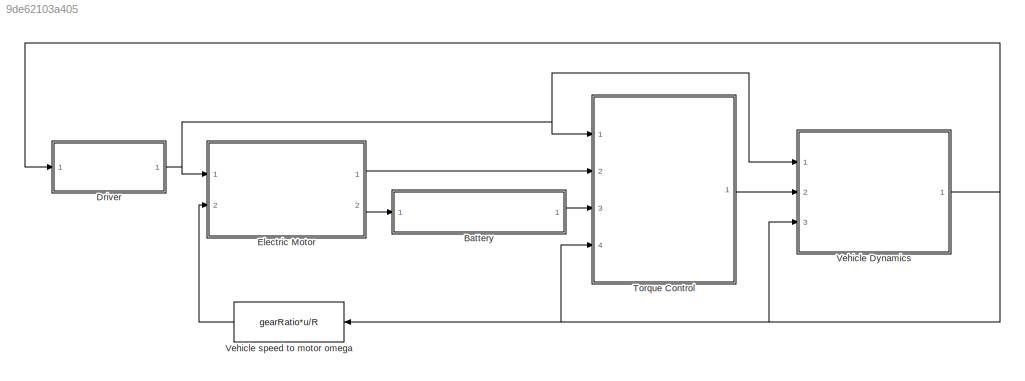
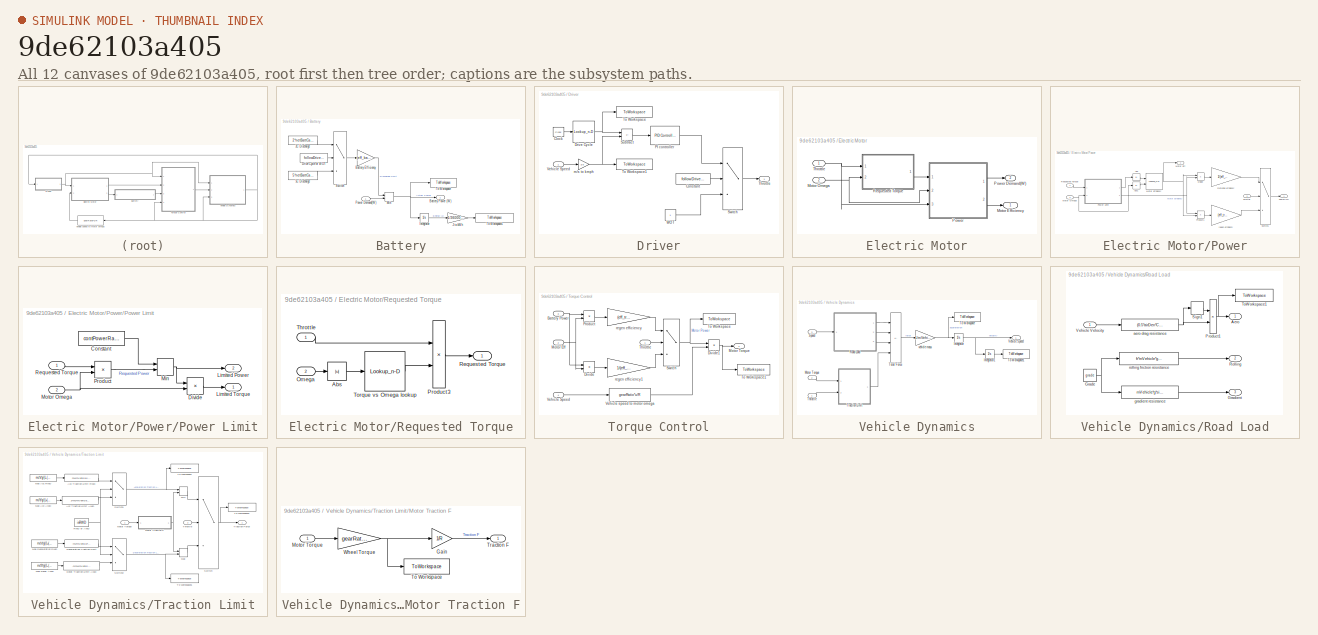
[diagram: thumbnail index - all 12 canvases of the model, root first then tree order]
MODEL slx_9de62103a405
KIND model
CONFIG AbsTol = auto
CONFIG EnableMultiTasking = off
CONFIG FixedStep = 1
CONFIG MaxStep = auto
CONFIG MinStep = auto
CONFIG RelTol = 1e-3
CONFIG SampleTimeConstraint = Unconstrained
CONFIG SolverName = VariableStepAuto
CONFIG StartTime = 1
CONFIG StopTime = sim_time
BLOCK [SubSystem] Battery
  Ports = [1, 1]
  RequestExecContextInheritance = off
BLOCK [Constant] Battery/2C Discharge
  Value = 2*netBattCap*1000
BLOCK [Constant] Battery/5C Discharge
  Value = 5*netBattCap*1000
BLOCK [Gain] Battery/Battery Efficiency
  Gain = (eff_batt)
BLOCK [Outport] Battery/Battery Power (W)
BLOCK [Constant] Battery/Drive Cycle or WOT
  Value = followDriveCycle
BLOCK [Integrator] Battery/Integrator
  Ports = [1, 1]
BLOCK [Gain] Battery/J to kWh
  Gain = 1/3600000
BLOCK [MinMax] Battery/Min
  Inputs = 2
  Ports = [2, 1]
BLOCK [Inport] Battery/Power Demand(W)
BLOCK [Switch] Battery/Switch
  Criteria = u2 > Threshold
  InputSameDT = off
  SaturateOnIntegerOverflow = off
BLOCK [ToWorkspace] Battery/To Workspace
  FixptAsFi = on
  MaxDataPoints = inf
  Ports = [1]
  SampleTime = -1
  SaveFormat = Timeseries
  VariableName = power
BLOCK [ToWorkspace] Battery/To Workspace1
  FixptAsFi = on
  MaxDataPoints = inf
  Ports = [1]
  SampleTime = -1
  SaveFormat = Timeseries
  VariableName = energyConsumed
BLOCK [SubSystem] Driver
  Ports = [1, 1]
  RequestExecContextInheritance = off
BLOCK [Clock] Driver/Clock
BLOCK [Constant] Driver/Constant
  Value = followDriveCycle
BLOCK [Lookup_n-D] Driver/Drive Cycle
  BreakpointsForDimension1 = t_cyc
  InputPortMap = u0
  InternalRulePriority = Speed
  NumberOfTableDimensions = 1
  Ports = [1, 1]
  RndMeth = Simplest
  Table = v_cyc
BLOCK [Reference] Driver/PI controller   REF=slpidlib/PID Controller
  Ports = [1, 1]
  SourceBlock = slpidlib/PID Controller
  SourceProductBaseCode = SL
  SourceType = PID 1dof
BLOCK [Sum] Driver/Subtract
  IconShape = rectangular
  Inputs = +-
  Ports = [2, 1]
BLOCK [Switch] Driver/Switch
  Criteria = u2 > Threshold
  InputSameDT = off
  SaturateOnIntegerOverflow = off
BLOCK [Outport] Driver/Throttle
BLOCK [ToWorkspace] Driver/To Workspace
  FixptAsFi = on
  MaxDataPoints = inf
  Ports = [1]
  SampleTime = -1
  Save2DSignal = 2-D array (concatenate along first dimension)
  SaveFormat = Timeseries
  VariableName = desiredSpeed
BLOCK [ToWorkspace] Driver/To Workspace1
  FixptAsFi = on
  MaxDataPoints = inf
  Ports = [1]
  SampleTime = -1
  SaveFormat = Timeseries
  VariableName = vehicleSpeed
BLOCK [Inport] Driver/Vehicle Speed
BLOCK [Constant] Driver/WOT
BLOCK [Gain] Driver/m//s to kmph
  Gain = 3.6
BLOCK [SubSystem] Electric Motor
  Ports = [2, 2]
  RequestExecContextInheritance = off
BLOCK [Outport] Electric Motor/Motor Efficiency 
BLOCK [Inport] Electric Motor/Motor Omega
  Port = 2
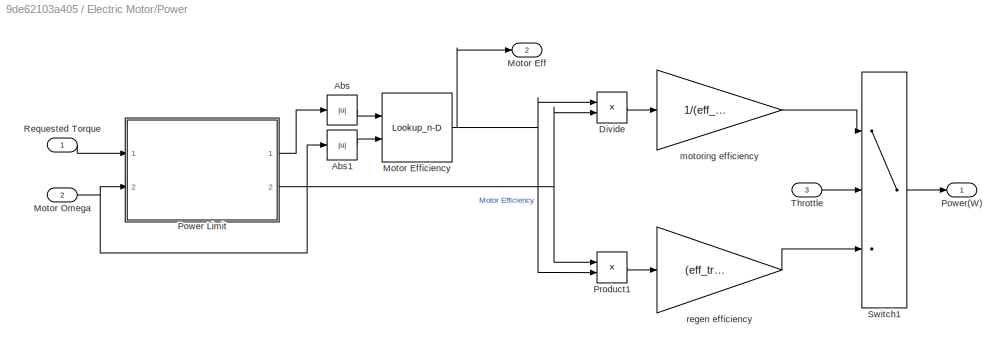
BLOCK [SubSystem] Electric Motor/Power
  Ports = [3, 2]
  RequestExecContextInheritance = off
BLOCK [Outport] Electric Motor/Power Demand(W)
  Port = 2
BLOCK [Abs] Electric Motor/Power/Abs
  SaturateOnIntegerOverflow = off
BLOCK [Abs] Electric Motor/Power/Abs1
  SaturateOnIntegerOverflow = off
BLOCK [Product] Electric Motor/Power/Divide
  Inputs = /*
  Ports = [2, 1]
BLOCK [Outport] Electric Motor/Power/Motor Eff
  Port = 2
BLOCK [Lookup_n-D] Electric Motor/Power/Motor Efficiency
  BreakpointsForDimension1 = EM_Torque_Map
  BreakpointsForDimension2 = EM_Omega_Map
  InputPortMap = u0,u1
  InternalRulePriority = Speed
  Ports = [2, 1]
  RndMeth = Simplest
  Table = EM_Efficiency
BLOCK [Inport] Electric Motor/Power/Motor Omega
  Port = 2
BLOCK [SubSystem] Electric Motor/Power/Power Limit
  Ports = [2, 2]
  RequestExecContextInheritance = off
BLOCK [Constant] Electric Motor/Power/Power Limit/Constant
  Value = contPowerRating
BLOCK [Product] Electric Motor/Power/Power Limit/Divide
  Inputs = */
  Ports = [2, 1]
BLOCK [Outport] Electric Motor/Power/Power Limit/Limited Power
  Port = 2
BLOCK [Outport] Electric Motor/Power/Power Limit/Limited Torque
BLOCK [MinMax] Electric Motor/Power/Power Limit/Min
  Inputs = 2
  Ports = [2, 1]
BLOCK [Inport] Electric Motor/Power/Power Limit/Motor Omega
  Port = 2
BLOCK [Product] Electric Motor/Power/Power Limit/Product
  Ports = [2, 1]
BLOCK [Inport] Electric Motor/Power/Power Limit/Requested Torque
BLOCK [Outport] Electric Motor/Power/Power(W) 
BLOCK [Product] Electric Motor/Power/Product1
  Ports = [2, 1]
BLOCK [Inport] Electric Motor/Power/Requested Torque
BLOCK [Switch] Electric Motor/Power/Switch1
  Criteria = u2 > Threshold
  InputSameDT = off
  SaturateOnIntegerOverflow = off
BLOCK [Inport] Electric Motor/Power/Throttle 
  Port = 3
BLOCK [Gain] Electric Motor/Power/motoring efficiency
  Gain = 1/(eff_trans*eff_batt)
BLOCK [Gain] Electric Motor/Power/regen efficiency
  Gain = (eff_trans*eff_batt)
BLOCK [SubSystem] Electric Motor/Requested Torque
  Ports = [2, 1]
  RequestExecContextInheritance = off
BLOCK [Abs] Electric Motor/Requested Torque/Abs
  SaturateOnIntegerOverflow = off
BLOCK [Inport] Electric Motor/Requested Torque/Omega
  Port = 2
BLOCK [Product] Electric Motor/Requested Torque/Product3
  Ports = [2, 1]
  RndMeth = Zero
BLOCK [Outport] Electric Motor/Requested Torque/Requested Torque
BLOCK [Inport] Electric Motor/Requested Torque/Throttle
BLOCK [Lookup_n-D] Electric Motor/Requested Torque/Torque vs Omega lookup
  BreakpointsForDimension1 = EM_Omega_Max
  BreakpointsForDimension2 = alpha
  InputPortMap = u0
  InternalRulePriority = Speed
  NumberOfTableDimensions = 1
  Ports = [1, 1]
  RndMeth = Simplest
  Table = EM_Torque_Max
BLOCK [Inport] Electric Motor/Throttle 
BLOCK [SubSystem] Torque Control
  Ports = [4, 1]
  RequestExecContextInheritance = off
BLOCK [Inport] Torque Control/Battery Power
  Port = 3
BLOCK [Product] Torque Control/Divide
  Inputs = */
  Ports = [2, 1]
BLOCK [Product] Torque Control/Divide1
  Inputs = */
  Ports = [2, 1]
BLOCK [Inport] Torque Control/Motor Eff
  Port = 2
BLOCK [Outport] Torque Control/Motor Torque
BLOCK [Product] Torque Control/Product
  Ports = [2, 1]
BLOCK [Switch] Torque Control/Switch
  Criteria = u2 > Threshold
  InputSameDT = off
  SaturateOnIntegerOverflow = off
BLOCK [Inport] Torque Control/Throttle
BLOCK [ToWorkspace] Torque Control/To Workspace
  FixptAsFi = on
  MaxDataPoints = inf
  Ports = [1]
  SampleTime = -1
  SaveFormat = Timeseries
  VariableName = motPower
BLOCK [ToWorkspace] Torque Control/To Workspace1
  FixptAsFi = on
  MaxDataPoints = inf
  Ports = [1]
  SampleTime = -1
  SaveFormat = Timeseries
  VariableName = motTorque
BLOCK [Inport] Torque Control/Vehicle Speed
  Port = 4
BLOCK [Fcn] Torque Control/Vehicle speed to motor omega
  Expr = gearRatio*u/R
BLOCK [Gain] Torque Control/regen efficiency
  Gain = (eff_trans*eff_batt)
BLOCK [Gain] Torque Control/regen efficiency1
  Gain = 1/(eff_trans*eff_batt)
BLOCK [SubSystem] Vehicle Dynamics
  Ports = [3, 1]
  RequestExecContextInheritance = off
BLOCK [Integrator] Vehicle Dynamics/Integrator
  Ports = [1, 1]
BLOCK [Integrator] Vehicle Dynamics/Integrator1
  Ports = [1, 1]
BLOCK [Inport] Vehicle Dynamics/Motor Torque
  Port = 2
BLOCK [SubSystem] Vehicle Dynamics/Road Load
  Ports = [1, 3]
  RequestExecContextInheritance = off
BLOCK [Outport] Vehicle Dynamics/Road Load/Aero 
BLOCK [Constant] Vehicle Dynamics/Road Load/Grade
  Value = grade
BLOCK [Outport] Vehicle Dynamics/Road Load/Gradient
  Port = 3
BLOCK [Product] Vehicle Dynamics/Road Load/Product1
  Ports = [2, 1]
BLOCK [Outport] Vehicle Dynamics/Road Load/Rolling
  Port = 2
BLOCK [Signum] Vehicle Dynamics/Road Load/Sign1
  NameLocation = top
BLOCK [ToWorkspace] Vehicle Dynamics/Road Load/ToWorkspace1
  FixptAsFi = on
  MaxDataPoints = inf
  Ports = [1]
  SampleTime = -1
  Save2DSignal = 2-D array (concatenate along first dimension)
  SaveFormat = Timeseries
  VariableName = airDrag
BLOCK [Inport] Vehicle Dynamics/Road Load/Vehicle Velocity
BLOCK [Fcn] Vehicle Dynamics/Road Load/aero drag resistance
  Expr = (0.5*airDen*Cd*fArea)*(u^2)
BLOCK [Fcn] Vehicle Dynamics/Road Load/gradient resistance
  Expr = mVehicle*g*sin(atan(u))
BLOCK [Fcn] Vehicle Dynamics/Road Load/rolling friction resistance
  Expr = fr*mVehicle*g*cos(atan(u))
BLOCK [Inport] Vehicle Dynamics/Speed
  Port = 3
BLOCK [Inport] Vehicle Dynamics/Throttle
BLOCK [ToWorkspace] Vehicle Dynamics/To Workspace
  FixptAsFi = on
  MaxDataPoints = inf
  Ports = [1]
  SampleTime = -1
  SaveFormat = Timeseries
  VariableName = acceleration
BLOCK [ToWorkspace] Vehicle Dynamics/To Workspace1
  FixptAsFi = on
  MaxDataPoints = inf
  Ports = [1]
  SampleTime = -1
  SaveFormat = Timeseries
  VariableName = distance
BLOCK [Sum] Vehicle Dynamics/Total Force
  IconShape = rectangular
  Inputs = ---+
  Ports = [4, 1]
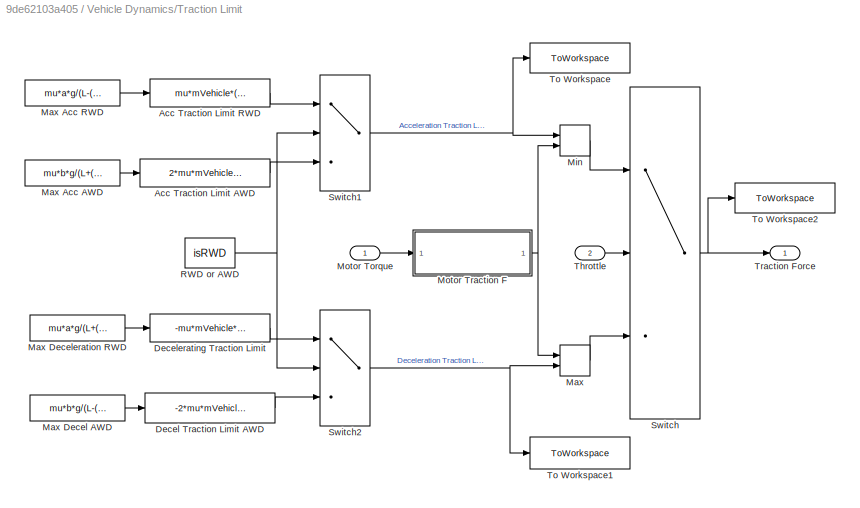
BLOCK [SubSystem] Vehicle Dynamics/Traction Limit
  Ports = [2, 1]
  RequestExecContextInheritance = off
BLOCK [Fcn] Vehicle Dynamics/Traction Limit/Acc Traction Limit AWD
  Expr = 2*mu*mVehicle*(b*g-h*u)/L
BLOCK [Fcn] Vehicle Dynamics/Traction Limit/Acc Traction Limit RWD
  Expr = mu*mVehicle*(a*g+h*u)/L
BLOCK [Fcn] Vehicle Dynamics/Traction Limit/Decel Traction Limit AWD
  Expr = -2*mu*mVehicle*(b*g+h*u)/L
BLOCK [Fcn] Vehicle Dynamics/Traction Limit/Decelerating Traction Limit
  Expr = -mu*mVehicle*(a*g-h*u)/L
BLOCK [MinMax] Vehicle Dynamics/Traction Limit/Max
  Function = max
  Inputs = 2
  Ports = [2, 1]
BLOCK [Constant] Vehicle Dynamics/Traction Limit/Max Acc AWD
  Value = mu*b*g/(L+(h*mu))
BLOCK [Constant] Vehicle Dynamics/Traction Limit/Max Acc RWD
  Value = mu*a*g/(L-(h*mu))
BLOCK [Constant] Vehicle Dynamics/Traction Limit/Max Decel AWD
  Value = mu*b*g/(L-(h*mu))
BLOCK [Constant] Vehicle Dynamics/Traction Limit/Max Deceleration RWD
  Value = mu*a*g/(L+(h*mu))
BLOCK [MinMax] Vehicle Dynamics/Traction Limit/Min
  Inputs = 2
  Ports = [2, 1]
BLOCK [Inport] Vehicle Dynamics/Traction Limit/Motor Torque
BLOCK [SubSystem] Vehicle Dynamics/Traction Limit/Motor Traction F
  Ports = [1, 1]
  RequestExecContextInheritance = off
BLOCK [Gain] Vehicle Dynamics/Traction Limit/Motor Traction F/Gain
  Gain = 1/R
BLOCK [Inport] Vehicle Dynamics/Traction Limit/Motor Traction F/Motor Torque
BLOCK [ToWorkspace] Vehicle Dynamics/Traction Limit/Motor Traction F/To Workspace
  FixptAsFi = on
  MaxDataPoints = inf
  Ports = [1]
  SampleTime = -1
  SaveFormat = Timeseries
  VariableName = wheelTorque
BLOCK [Outport] Vehicle Dynamics/Traction Limit/Motor Traction F/Traction F
BLOCK [Gain] Vehicle Dynamics/Traction Limit/Motor Traction F/Wheel Torque
  Gain = gearRatio
BLOCK [Constant] Vehicle Dynamics/Traction Limit/RWD or AWD
  Value = isRWD
BLOCK [Switch] Vehicle Dynamics/Traction Limit/Switch
  InputSameDT = off
  SaturateOnIntegerOverflow = off
BLOCK [Switch] Vehicle Dynamics/Traction Limit/Switch1
  Criteria = u2 > Threshold
  InputSameDT = off
  SaturateOnIntegerOverflow = off
BLOCK [Switch] Vehicle Dynamics/Traction Limit/Switch2
  Criteria = u2 > Threshold
  InputSameDT = off
  SaturateOnIntegerOverflow = off
BLOCK [Inport] Vehicle Dynamics/Traction Limit/Throttle
  Port = 2
BLOCK [ToWorkspace] Vehicle Dynamics/Traction Limit/To Workspace
  FixptAsFi = on
  MaxDataPoints = inf
  Ports = [1]
  SampleTime = -1
  SaveFormat = Timeseries
  VariableName = accTracLimit
BLOCK [ToWorkspace] Vehicle Dynamics/Traction Limit/To Workspace1
  FixptAsFi = on
  MaxDataPoints = inf
  Ports = [1]
  SampleTime = -1
  SaveFormat = Timeseries
  VariableName = decTracLimit
BLOCK [ToWorkspace] Vehicle Dynamics/Traction Limit/To Workspace2
  FixptAsFi = on
  MaxDataPoints = inf
  Ports = [1]
  SampleTime = -1
  SaveFormat = Timeseries
  VariableName = tractionForce
BLOCK [Outport] Vehicle Dynamics/Traction Limit/Traction Force
BLOCK [Outport] Vehicle Dynamics/Vehicle Speed
BLOCK [Gain] Vehicle Dynamics/vehicle mass
  Gain = 1/mVehicle
BLOCK [Fcn] Vehicle speed to motor omega
  Expr = gearRatio*u/R
LINE Battery/2C Discharge:1 -> Battery/Switch:1
LINE Battery/5C Discharge:1 -> Battery/Switch:3
LINE Battery/Battery Efficiency:1 -> Battery/Min:1
LINE Battery/Drive Cycle or WOT:1 -> Battery/Switch:2
LINE Battery/Integrator:1 -> Battery/J to kWh:1
LINE Battery/J to kWh:1 -> Battery/To Workspace1:1
NET Battery/Min:1 -> Battery/Battery Power (W):1, Battery/Integrator:1, Battery/To Workspace:1
LINE Battery/Power Demand(W):1 -> Battery/Min:2
LINE Battery/Switch:1 -> Battery/Battery Efficiency:1
LINE Battery:1 -> Torque Control:3
LINE Driver/Clock:1 -> Driver/Drive Cycle:1
LINE Driver/Constant:1 -> Driver/Switch:2
NET Driver/Drive Cycle:1 -> Driver/Subtract:1, Driver/To Workspace:1
LINE Driver/PI controller :1 -> Driver/Switch:1
LINE Driver/Subtract:1 -> Driver/PI controller :1
LINE Driver/Switch:1 -> Driver/Throttle:1
LINE Driver/Vehicle Speed:1 -> Driver/m//s to kmph:1
LINE Driver/WOT:1 -> Driver/Switch:3
NET Driver/m//s to kmph:1 -> Driver/Subtract:2, Driver/To Workspace1:1
NET Driver:1 -> Electric Motor:1, Torque Control:1, Vehicle Dynamics:1
NET Electric Motor/Motor Omega:1 -> Electric Motor/Power:2, Electric Motor/Requested Torque:2
LINE Electric Motor/Power/Abs1:1 -> Electric Motor/Power/Motor Efficiency:2
LINE Electric Motor/Power/Abs:1 -> Electric Motor/Power/Motor Efficiency:1
LINE Electric Motor/Power/Divide:1 -> Electric Motor/Power/motoring efficiency:1
NET Electric Motor/Power/Motor Efficiency:1 -> Electric Motor/Power/Divide:1, Electric Motor/Power/Motor Eff:1, Electric Motor/Power/Product1:2
NET Electric Motor/Power/Motor Omega:1 -> Electric Motor/Power/Abs1:1, Electric Motor/Power/Power Limit:2
LINE Electric Motor/Power/Power Limit/Constant:1 -> Electric Motor/Power/Power Limit/Min:1
LINE Electric Motor/Power/Power Limit/Divide:1 -> Electric Motor/Power/Power Limit/Limited Torque:1
NET Electric Motor/Power/Power Limit/Min:1 -> Electric Motor/Power/Power Limit/Divide:1, Electric Motor/Power/Power Limit/Limited Power:1
NET Electric Motor/Power/Power Limit/Motor Omega:1 -> Electric Motor/Power/Power Limit/Divide:2, Electric Motor/Power/Power Limit/Product:2
LINE Electric Motor/Power/Power Limit/Product:1 -> Electric Motor/Power/Power Limit/Min:2
LINE Electric Motor/Power/Power Limit/Requested Torque:1 -> Electric Motor/Power/Power Limit/Product:1
LINE Electric Motor/Power/Power Limit:1 -> Electric Motor/Power/Abs:1
NET Electric Motor/Power/Power Limit:2 -> Electric Motor/Power/Divide:2, Electric Motor/Power/Product1:1
LINE Electric Motor/Power/Product1:1 -> Electric Motor/Power/regen efficiency:1
LINE Electric Motor/Power/Requested Torque:1 -> Electric Motor/Power/Power Limit:1
LINE Electric Motor/Power/Switch1:1 -> Electric Motor/Power/Power(W) :1
LINE Electric Motor/Power/Throttle :1 -> Electric Motor/Power/Switch1:2
LINE Electric Motor/Power/motoring efficiency:1 -> Electric Motor/Power/Switch1:1
LINE Electric Motor/Power/regen efficiency:1 -> Electric Motor/Power/Switch1:3
LINE Electric Motor/Power:1 -> Electric Motor/Power Demand(W):1
LINE Electric Motor/Power:2 -> Electric Motor/Motor Efficiency :1
LINE Electric Motor/Requested Torque/Abs:1 -> Electric Motor/Requested Torque/Torque vs Omega lookup:1
LINE Electric Motor/Requested Torque/Omega:1 -> Electric Motor/Requested Torque/Abs:1
LINE Electric Motor/Requested Torque/Product3:1 -> Electric Motor/Requested Torque/Requested Torque:1
LINE Electric Motor/Requested Torque/Throttle:1 -> Electric Motor/Requested Torque/Product3:1
LINE Electric Motor/Requested Torque/Torque vs Omega lookup:1 -> Electric Motor/Requested Torque/Product3:2
LINE Electric Motor/Requested Torque:1 -> Electric Motor/Power:1
NET Electric Motor/Throttle :1 -> Electric Motor/Power:3, Electric Motor/Requested Torque:1
LINE Electric Motor:1 -> Torque Control:2
LINE Electric Motor:2 -> Battery:1
NET Torque Control/Battery Power:1 -> Torque Control/Divide:1, Torque Control/Product:1
NET Torque Control/Divide1:1 -> Torque Control/Motor Torque:1, Torque Control/To Workspace1:1
LINE Torque Control/Divide:1 -> Torque Control/regen efficiency1:1
NET Torque Control/Motor Eff:1 -> Torque Control/Divide:2, Torque Control/Product:2
LINE Torque Control/Product:1 -> Torque Control/regen efficiency:1
NET Torque Control/Switch:1 -> Torque Control/Divide1:1, Torque Control/To Workspace:1
LINE Torque Control/Throttle:1 -> Torque Control/Switch:2
LINE Torque Control/Vehicle Speed:1 -> Torque Control/Vehicle speed to motor omega:1
LINE Torque Control/Vehicle speed to motor omega:1 -> Torque Control/Divide1:2
LINE Torque Control/regen efficiency1:1 -> Torque Control/Switch:3
LINE Torque Control/regen efficiency:1 -> Torque Control/Switch:1
LINE Torque Control:1 -> Vehicle Dynamics:2
LINE Vehicle Dynamics/Integrator1:1 -> Vehicle Dynamics/To Workspace1:1
NET Vehicle Dynamics/Integrator:1 -> Vehicle Dynamics/Integrator1:1, Vehicle Dynamics/Vehicle Speed:1
LINE Vehicle Dynamics/Motor Torque:1 -> Vehicle Dynamics/Traction Limit:1
NET Vehicle Dynamics/Road Load/Grade:1 -> Vehicle Dynamics/Road Load/gradient resistance:1, Vehicle Dynamics/Road Load/rolling friction resistance:1
NET Vehicle Dynamics/Road Load/Product1:1 -> Vehicle Dynamics/Road Load/Aero :1, Vehicle Dynamics/Road Load/ToWorkspace1:1
LINE Vehicle Dynamics/Road Load/Sign1:1 -> Vehicle Dynamics/Road Load/Product1:1
LINE Vehicle Dynamics/Road Load/Vehicle Velocity:1 -> Vehicle Dynamics/Road Load/aero drag resistance:1
NET Vehicle Dynamics/Road Load/aero drag resistance:1 -> Vehicle Dynamics/Road Load/Product1:2, Vehicle Dynamics/Road Load/Sign1:1
LINE Vehicle Dynamics/Road Load/gradient resistance:1 -> Vehicle Dynamics/Road Load/Gradient:1
LINE Vehicle Dynamics/Road Load/rolling friction resistance:1 -> Vehicle Dynamics/Road Load/Rolling:1
LINE Vehicle Dynamics/Road Load:1 -> Vehicle Dynamics/Total Force:1
LINE Vehicle Dynamics/Road Load:2 -> Vehicle Dynamics/Total Force:2
LINE Vehicle Dynamics/Road Load:3 -> Vehicle Dynamics/Total Force:3
LINE Vehicle Dynamics/Speed:1 -> Vehicle Dynamics/Road Load:1
LINE Vehicle Dynamics/Throttle:1 -> Vehicle Dynamics/Traction Limit:2
LINE Vehicle Dynamics/Total Force:1 -> Vehicle Dynamics/vehicle mass:1
LINE Vehicle Dynamics/Traction Limit/Acc Traction Limit AWD:1 -> Vehicle Dynamics/Traction Limit/Switch1:3
LINE Vehicle Dynamics/Traction Limit/Acc Traction Limit RWD:1 -> Vehicle Dynamics/Traction Limit/Switch1:1
LINE Vehicle Dynamics/Traction Limit/Decel Traction Limit AWD:1 -> Vehicle Dynamics/Traction Limit/Switch2:3
LINE Vehicle Dynamics/Traction Limit/Decelerating Traction Limit:1 -> Vehicle Dynamics/Traction Limit/Switch2:1
LINE Vehicle Dynamics/Traction Limit/Max Acc AWD:1 -> Vehicle Dynamics/Traction Limit/Acc Traction Limit AWD:1
LINE Vehicle Dynamics/Traction Limit/Max Acc RWD:1 -> Vehicle Dynamics/Traction Limit/Acc Traction Limit RWD:1
LINE Vehicle Dynamics/Traction Limit/Max Decel AWD:1 -> Vehicle Dynamics/Traction Limit/Decel Traction Limit AWD:1
LINE Vehicle Dynamics/Traction Limit/Max Deceleration RWD:1 -> Vehicle Dynamics/Traction Limit/Decelerating Traction Limit:1
LINE Vehicle Dynamics/Traction Limit/Max:1 -> Vehicle Dynamics/Traction Limit/Switch:3
LINE Vehicle Dynamics/Traction Limit/Min:1 -> Vehicle Dynamics/Traction Limit/Switch:1
LINE Vehicle Dynamics/Traction Limit/Motor Torque:1 -> Vehicle Dynamics/Traction Limit/Motor Traction F:1
LINE Vehicle Dynamics/Traction Limit/Motor Traction F/Gain:1 -> Vehicle Dynamics/Traction Limit/Motor Traction F/Traction F:1
LINE Vehicle Dynamics/Traction Limit/Motor Traction F/Motor Torque:1 -> Vehicle Dynamics/Traction Limit/Motor Traction F/Wheel Torque:1
NET Vehicle Dynamics/Traction Limit/Motor Traction F/Wheel Torque:1 -> Vehicle Dynamics/Traction Limit/Motor Traction F/Gain:1, Vehicle Dynamics/Traction Limit/Motor Traction F/To Workspace:1
NET Vehicle Dynamics/Traction Limit/Motor Traction F:1 -> Vehicle Dynamics/Traction Limit/Max:1, Vehicle Dynamics/Traction Limit/Min:2
NET Vehicle Dynamics/Traction Limit/RWD or AWD:1 -> Vehicle Dynamics/Traction Limit/Switch1:2, Vehicle Dynamics/Traction Limit/Switch2:2
NET Vehicle Dynamics/Traction Limit/Switch1:1 -> Vehicle Dynamics/Traction Limit/Min:1, Vehicle Dynamics/Traction Limit/To Workspace:1
NET Vehicle Dynamics/Traction Limit/Switch2:1 -> Vehicle Dynamics/Traction Limit/Max:2, Vehicle Dynamics/Traction Limit/To Workspace1:1
NET Vehicle Dynamics/Traction Limit/Switch:1 -> Vehicle Dynamics/Traction Limit/To Workspace2:1, Vehicle Dynamics/Traction Limit/Traction Force:1
LINE Vehicle Dynamics/Traction Limit/Throttle:1 -> Vehicle Dynamics/Traction Limit/Switch:2
LINE Vehicle Dynamics/Traction Limit:1 -> Vehicle Dynamics/Total Force:4
NET Vehicle Dynamics/vehicle mass:1 -> Vehicle Dynamics/Integrator:1, Vehicle Dynamics/To Workspace:1
NET Vehicle Dynamics:1 -> Driver:1, Torque Control:4, Vehicle Dynamics:3, Vehicle speed to motor omega:1
LINE Vehicle speed to motor omega:1 -> Electric Motor:2
note: NET lines group one-source signal fan-out (src -> all destinations, sorted); 1:1 wires keep LINE
